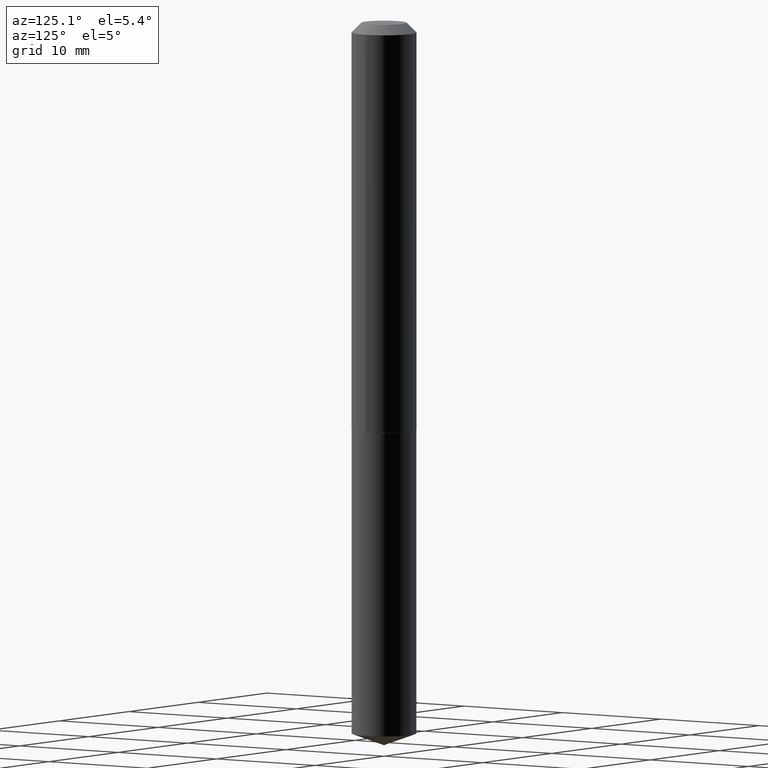
[diagram: clean part render]
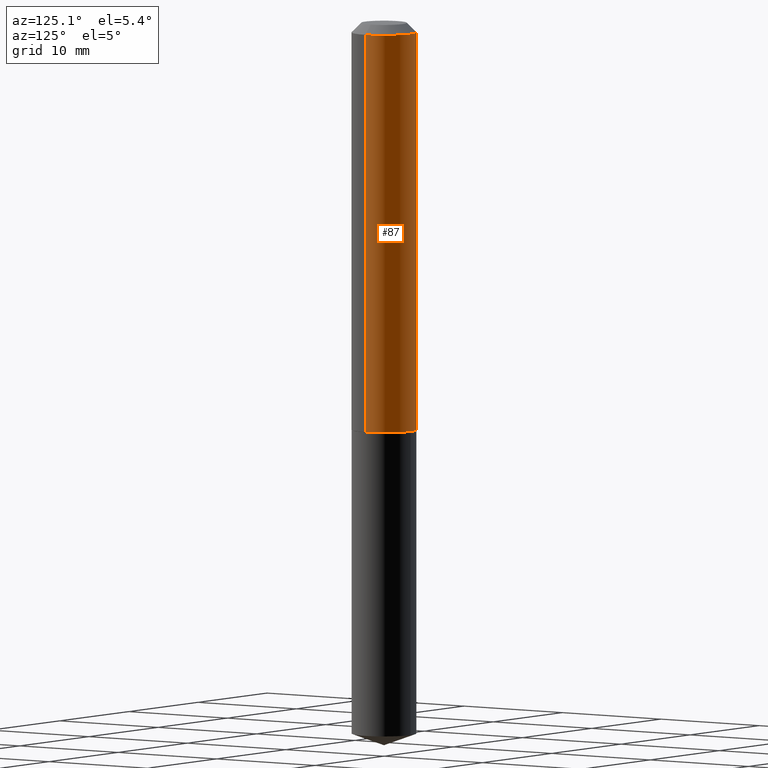
[diagram: same view with one face highlighted and labeled with its STEP entity id]
A machine part, auxiliary view. The second image highlights one B-rep face of the part: STEP entity #87.
In plain terms, the highlighted cylindrical surface (edge-blend (fillet) strip) has radius 2.7051 mm, axis along (-0, 0, 1).
Its self-contained STEP definition (entity closure, byte-faithful):
#1 = LINE ( 'NONE', #26, #91 ) ;
#4 = VERTEX_POINT ( 'NONE', #80 ) ;
#20 = CIRCLE ( 'NONE', #275, 0.1065000000000001640 ) ;
#26 = CARTESIAN_POINT ( 'NONE',  ( -0.1065000000000000807, 7.567280135845072715E-16, -5.238665871121478096E-30 ) ) ;
#28 = CYLINDRICAL_SURFACE ( 'NONE', #319, 0.1065000000000000807 ) ;
#58 = DIRECTION ( 'NONE',  ( -2.445468806185136597E-29, 3.491481338843145583E-15, 1.000000000000000000 ) ) ;
#64 = DIRECTION ( 'NONE',  ( -2.445468806185136877E-29, 3.491481338843145188E-15, 1.000000000000000000 ) ) ;
#80 = CARTESIAN_POINT ( 'NONE',  ( 0.1065000000000000113, -8.527943170124366394E-16, -0.03125000000000020817 ) ) ;
#87 = ADVANCED_FACE ( 'NONE', ( #180 ), #28, .T. ) ;
#91 = VECTOR ( 'NONE', #146, 39.37007874015748143 ) ;
#99 = CIRCLE ( 'NONE', #167, 0.1065000000000000113 ) ;
#106 = ORIENTED_EDGE ( 'NONE', *, *, #352, .T. ) ;
#118 = CARTESIAN_POINT ( 'NONE',  ( -0.1065000000000000113, -1.632754527686270697E-15, -0.03125000000000020817 ) ) ;
#145 = VERTEX_POINT ( 'NONE', #248 ) ;
#146 = DIRECTION ( 'NONE',  ( -2.445468806185136877E-29, 3.491481338843145188E-15, 1.000000000000000000 ) ) ;
#150 = VERTEX_POINT ( 'NONE', #118 ) ;
#152 = DIRECTION ( 'NONE',  ( 1.000000000000000000, -6.982962677686262766E-15, 0.000000000000000000 ) ) ;
#159 = ORIENTED_EDGE ( 'NONE', *, *, #354, .T. ) ;
#167 = AXIS2_PLACEMENT_3D ( 'NONE', #351, #263, #171 ) ;
#171 = DIRECTION ( 'NONE',  ( 1.000000000000000000, -6.982962677686267499E-15, 0.000000000000000000 ) ) ;
#180 = FACE_OUTER_BOUND ( 'NONE', #228, .T. ) ;
#185 = LINE ( 'NONE', #190, #210 ) ;
#189 = VERTEX_POINT ( 'NONE', #194 ) ;
#190 = CARTESIAN_POINT ( 'NONE',  ( 0.1065000000000000807, -7.436855251735880318E-16, 5.193128266222675235E-30 ) ) ;
#194 = CARTESIAN_POINT ( 'NONE',  ( 0.1065000000000001640, -5.413541815876296348E-15, -1.337500000000000133 ) ) ;
#210 = VECTOR ( 'NONE', #64, 39.37007874015748143 ) ;
#228 = EDGE_LOOP ( 'NONE', ( #159, #106, #315, #242 ) ) ;
#239 = EDGE_CURVE ( 'NONE', #4, #150, #99, .T. ) ;
#242 = ORIENTED_EDGE ( 'NONE', *, *, #343, .F. ) ;
#248 = CARTESIAN_POINT ( 'NONE',  ( -0.1065000000000001640, -3.913128277118200453E-15, -1.337500000000000133 ) ) ;
#263 = DIRECTION ( 'NONE',  ( -2.445468806185136597E-29, 3.491481338843145583E-15, 1.000000000000000000 ) ) ;
#275 = AXIS2_PLACEMENT_3D ( 'NONE', #335, #58, #152 ) ;
#303 = CARTESIAN_POINT ( 'NONE',  ( 0.000000000000000000, 0.000000000000000000, 0.000000000000000000 ) ) ;
#315 = ORIENTED_EDGE ( 'NONE', *, *, #239, .F. ) ;
#319 = AXIS2_PLACEMENT_3D ( 'NONE', #303, #330, #366 ) ;
#330 = DIRECTION ( 'NONE',  ( -2.445468806185136597E-29, 3.491481338843145583E-15, 1.000000000000000000 ) ) ;
#335 = CARTESIAN_POINT ( 'NONE',  ( 3.270814528272620647E-29, -4.669856290702708218E-15, -1.337500000000000133 ) ) ;
#343 = EDGE_CURVE ( 'NONE', #189, #4, #185, .T. ) ;
#351 = CARTESIAN_POINT ( 'NONE',  ( 7.642090019328602662E-31, -1.091087918388490267E-16, -0.03125000000000020817 ) ) ;
#352 = EDGE_CURVE ( 'NONE', #145, #150, #1, .T. ) ;
#354 = EDGE_CURVE ( 'NONE', #189, #145, #20, .T. ) ;
#366 = DIRECTION ( 'NONE',  ( 1.000000000000000000, -6.982962677686267499E-15, 4.876176775795935232E-29 ) ) ;